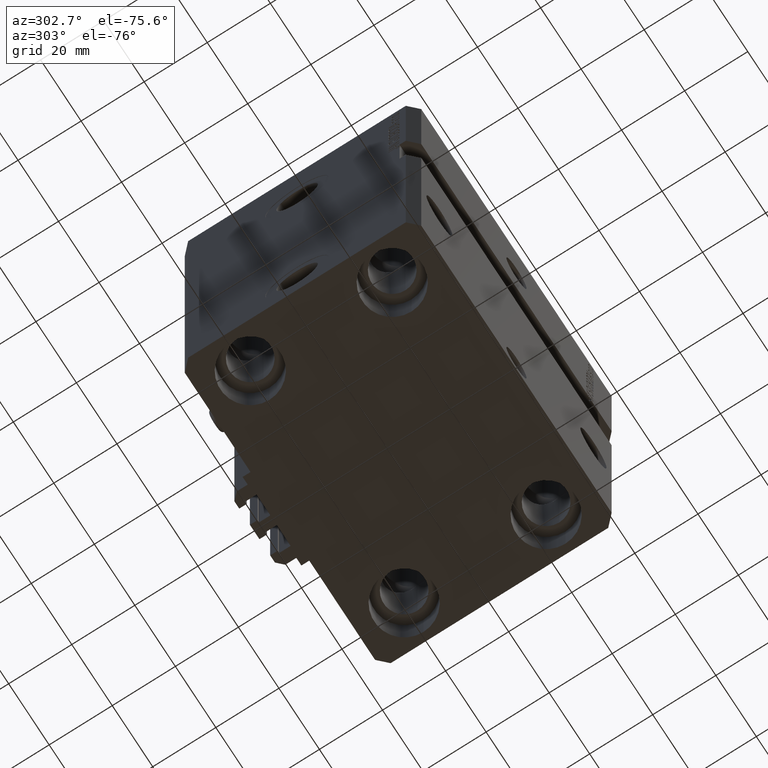
[diagram: clean part render]
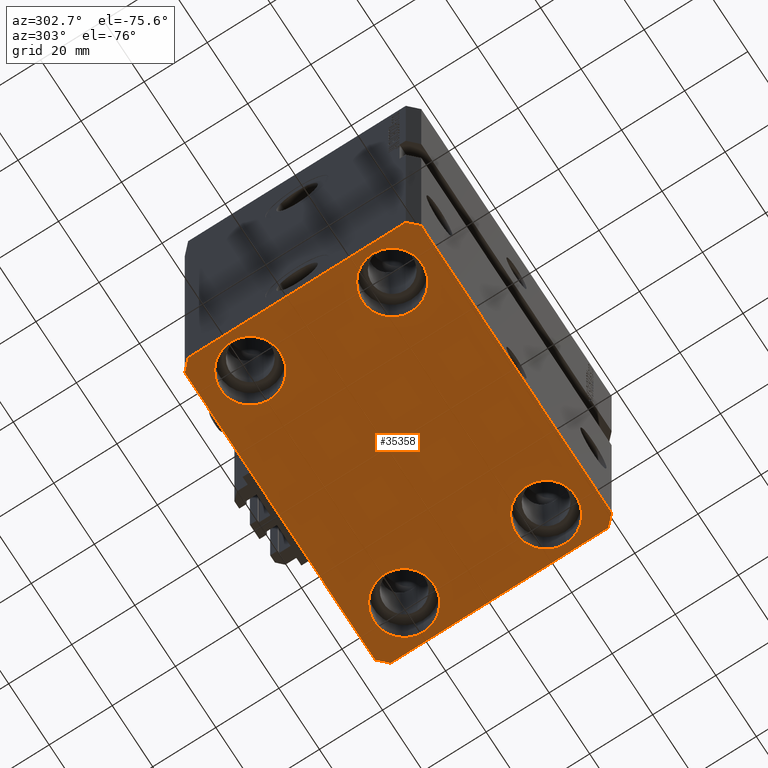
[diagram: same view with one face highlighted and labeled with its STEP entity id]
A machine part, auxiliary view. The second image highlights one B-rep face of the part: STEP entity #35358.
In plain terms, the highlighted planar face has unit normal (0, 0, 1).
Its self-contained STEP definition (entity closure, byte-faithful):
#408 = CARTESIAN_POINT ( 'NONE',  ( 47.00000000000000000, -37.50000000000000711, -125.0000000000000000 ) ) ;
#778 = EDGE_CURVE ( 'NONE', #5392, #48192, #28093, .T. ) ;
#797 = ORIENTED_EDGE ( 'NONE', *, *, #15388, .F. ) ;
#822 = CARTESIAN_POINT ( 'NONE',  ( 47.50000000000000711, 22.50000000000001421, -125.0000000000000000 ) ) ;
#846 = ORIENTED_EDGE ( 'NONE', *, *, #46431, .T. ) ;
#1302 = CARTESIAN_POINT ( 'NONE',  ( -38.00000000000000711, 22.50000000000000000, -125.0000000000000000 ) ) ;
#1478 = EDGE_CURVE ( 'NONE', #48192, #46323, #11118, .T. ) ;
#1617 = PLANE ( 'NONE',  #36142 ) ;
#1778 = DIRECTION ( 'NONE',  ( -0.000000000000000000, -0.000000000000000000, 1.000000000000000000 ) ) ;
#1850 = FACE_BOUND ( 'NONE', #33432, .T. ) ;
#1930 = VERTEX_POINT ( 'NONE', #4423 ) ;
#2247 = CARTESIAN_POINT ( 'NONE',  ( 38.00000000000000711, -22.50000000000000000, -125.0000000000000000 ) ) ;
#2320 = VECTOR ( 'NONE', #21015, 1000.000000000000000 ) ;
#2501 = CIRCLE ( 'NONE', #47617, 9.500000000000001776 ) ;
#2733 = DIRECTION ( 'NONE',  ( 1.000000000000000000, -1.476360405086644309E-16, 0.000000000000000000 ) ) ;
#3185 = CARTESIAN_POINT ( 'NONE',  ( -47.00000000000000000, -37.49999999999999289, -125.0000000000000000 ) ) ;
#4331 = CARTESIAN_POINT ( 'NONE',  ( 50.00000000000051870, 34.49999999999995026, -125.0000000000000000 ) ) ;
#4423 = CARTESIAN_POINT ( 'NONE',  ( 50.00000000000051870, 34.49999999999995026, -125.0000000000000000 ) ) ;
#4540 = ORIENTED_EDGE ( 'NONE', *, *, #1478, .F. ) ;
#4734 = CARTESIAN_POINT ( 'NONE',  ( -28.50000000000000355, 22.50000000000000000, -125.0000000000000000 ) ) ;
#4754 = DIRECTION ( 'NONE',  ( -0.000000000000000000, -0.000000000000000000, 1.000000000000000000 ) ) ;
#5272 = FACE_BOUND ( 'NONE', #28264, .T. ) ;
#5392 = VERTEX_POINT ( 'NONE', #31865 ) ;
#5471 = CARTESIAN_POINT ( 'NONE',  ( 38.00000000000000711, 22.50000000000001421, -125.0000000000000000 ) ) ;
#7202 = VERTEX_POINT ( 'NONE', #33750 ) ;
#7476 = ORIENTED_EDGE ( 'NONE', *, *, #26177, .T. ) ;
#7475 = DIRECTION ( 'NONE',  ( 2.011273595335428326E-16, -1.000000000000000000, 0.000000000000000000 ) ) ;
#7643 = AXIS2_PLACEMENT_3D ( 'NONE', #13553, #9188, #31132 ) ;
#7653 = CARTESIAN_POINT ( 'NONE',  ( 47.00000000000056843, 37.49999999999999289, -125.0000000000000000 ) ) ;
#7947 = LINE ( 'NONE', #408, #9078 ) ;
#8083 = EDGE_CURVE ( 'NONE', #1930, #14229, #23575, .T. ) ;
#8188 = ORIENTED_EDGE ( 'NONE', *, *, #34454, .T. ) ;
#8846 = VERTEX_POINT ( 'NONE', #31767 ) ;
#9078 = VECTOR ( 'NONE', #22575, 1000.000000000000000 ) ;
#9188 = DIRECTION ( 'NONE',  ( -0.000000000000000000, -0.000000000000000000, 1.000000000000000000 ) ) ;
#10290 = VECTOR ( 'NONE', #29129, 1000.000000000000114 ) ;
#10386 = VERTEX_POINT ( 'NONE', #27054 ) ;
#10500 = VECTOR ( 'NONE', #15538, 1000.000000000000114 ) ;
#10894 = DIRECTION ( 'NONE',  ( 7.441712302741091634E-15, 1.000000000000000000, 0.000000000000000000 ) ) ;
#11036 = EDGE_CURVE ( 'NONE', #7202, #24798, #39330, .T. ) ;
#11118 = LINE ( 'NONE', #33545, #36569 ) ;
#11430 = ORIENTED_EDGE ( 'NONE', *, *, #8083, .F. ) ;
#12045 = ORIENTED_EDGE ( 'NONE', *, *, #22382, .F. ) ;
#12107 = VERTEX_POINT ( 'NONE', #28439 ) ;
#12309 = VECTOR ( 'NONE', #10894, 1000.000000000000000 ) ;
#12313 = CIRCLE ( 'NONE', #7643, 9.500000000000001776 ) ;
#13356 = VERTEX_POINT ( 'NONE', #29351 ) ;
#13456 = CARTESIAN_POINT ( 'NONE',  ( -47.00000000000001421, 37.50000000000000000, -125.0000000000000000 ) ) ;
#13553 = CARTESIAN_POINT ( 'NONE',  ( 38.00000000000000711, 22.50000000000001421, -125.0000000000000000 ) ) ;
#13788 = AXIS2_PLACEMENT_3D ( 'NONE', #39267, #24390, #24878 ) ;
#14229 = VERTEX_POINT ( 'NONE', #7653 ) ;
#14247 = CARTESIAN_POINT ( 'NONE',  ( -50.00000000000000000, -34.50000000000000000, -125.0000000000000000 ) ) ;
#14410 = CARTESIAN_POINT ( 'NONE',  ( -38.00000000000000711, -22.50000000000000000, -125.0000000000000000 ) ) ;
#14550 = LINE ( 'NONE', #26008, #12309 ) ;
#15388 = EDGE_CURVE ( 'NONE', #10386, #13356, #7947, .T. ) ;
#15538 = DIRECTION ( 'NONE',  ( -0.7071067811865361374, 0.7071067811865588970, 0.000000000000000000 ) ) ;
#15947 = DIRECTION ( 'NONE',  ( -0.000000000000000000, -0.000000000000000000, 1.000000000000000000 ) ) ;
#17092 = DIRECTION ( 'NONE',  ( -0.000000000000000000, -0.000000000000000000, 1.000000000000000000 ) ) ;
#17583 = LINE ( 'NONE', #36122, #25646 ) ;
#17696 = EDGE_CURVE ( 'NONE', #8846, #33534, #42632, .T. ) ;
#17825 = DIRECTION ( 'NONE',  ( -0.000000000000000000, -0.000000000000000000, 1.000000000000000000 ) ) ;
#17881 = DIRECTION ( 'NONE',  ( -1.000000000000000000, 7.381802025433175941E-17, 0.000000000000000000 ) ) ;
#18297 = DIRECTION ( 'NONE',  ( 1.000000000000000000, 0.000000000000000000, 0.000000000000000000 ) ) ;
#19262 = AXIS2_PLACEMENT_3D ( 'NONE', #5471, #4754, #33998 ) ;
#19469 = EDGE_CURVE ( 'NONE', #33534, #8846, #12313, .T. ) ;
#20033 = DIRECTION ( 'NONE',  ( 1.000000000000000000, 0.000000000000000000, 0.000000000000000000 ) ) ;
#20424 = EDGE_LOOP ( 'NONE', ( #43704, #11430, #12045, #797, #45141, #32343, #4540, #29769 ) ) ;
#20494 = CIRCLE ( 'NONE', #44642, 9.500000000000001776 ) ;
#20771 = CARTESIAN_POINT ( 'NONE',  ( -28.50000000000000355, -22.50000000000000000, -125.0000000000000000 ) ) ;
#21015 = DIRECTION ( 'NONE',  ( -0.7071067811865483499, -0.7071067811865466846, 0.000000000000000000 ) ) ;
#21536 = CARTESIAN_POINT ( 'NONE',  ( 47.00000000000056843, 37.49999999999999289, -125.0000000000000000 ) ) ;
#21895 = VERTEX_POINT ( 'NONE', #4734 ) ;
#22382 = EDGE_CURVE ( 'NONE', #13356, #1930, #14550, .T. ) ;
#22575 = DIRECTION ( 'NONE',  ( 0.7071067811865483499, 0.7071067811865466846, 0.000000000000000000 ) ) ;
#22722 = EDGE_CURVE ( 'NONE', #46559, #10386, #17583, .T. ) ;
#23408 = CARTESIAN_POINT ( 'NONE',  ( -38.00000000000000711, 22.50000000000000000, -125.0000000000000000 ) ) ;
#23544 = CARTESIAN_POINT ( 'NONE',  ( 0.000000000000000000, 0.000000000000000000, -125.0000000000000000 ) ) ;
#23575 = LINE ( 'NONE', #4331, #10500 ) ;
#23668 = EDGE_LOOP ( 'NONE', ( #26444, #26359 ) ) ;
#23671 = CARTESIAN_POINT ( 'NONE',  ( -50.00000000000000000, -34.50000000000000000, -125.0000000000000000 ) ) ;
#23742 = ORIENTED_EDGE ( 'NONE', *, *, #26016, .T. ) ;
#23792 = FACE_OUTER_BOUND ( 'NONE', #20424, .T. ) ;
#24390 = DIRECTION ( 'NONE',  ( -0.000000000000000000, -0.000000000000000000, 1.000000000000000000 ) ) ;
#24798 = VERTEX_POINT ( 'NONE', #42553 ) ;
#24878 = DIRECTION ( 'NONE',  ( 1.000000000000000000, 0.000000000000000000, 0.000000000000000000 ) ) ;
#24910 = AXIS2_PLACEMENT_3D ( 'NONE', #14410, #17825, #18297 ) ;
#25646 = VECTOR ( 'NONE', #2733, 1000.000000000000000 ) ;
#26008 = CARTESIAN_POINT ( 'NONE',  ( 50.00000000000000000, -34.50000000000000711, -125.0000000000000000 ) ) ;
#26016 = EDGE_CURVE ( 'NONE', #27271, #47457, #41224, .T. ) ;
#26177 = EDGE_CURVE ( 'NONE', #21895, #12107, #47451, .T. ) ;
#26237 = EDGE_LOOP ( 'NONE', ( #846, #23742 ) ) ;
#26359 = ORIENTED_EDGE ( 'NONE', *, *, #19469, .T. ) ;
#26444 = ORIENTED_EDGE ( 'NONE', *, *, #17696, .T. ) ;
#27054 = CARTESIAN_POINT ( 'NONE',  ( 47.00000000000000000, -37.50000000000000711, -125.0000000000000000 ) ) ;
#27172 = DIRECTION ( 'NONE',  ( 1.000000000000000000, 0.000000000000000000, 0.000000000000000000 ) ) ;
#27271 = VERTEX_POINT ( 'NONE', #20771 ) ;
#27448 = DIRECTION ( 'NONE',  ( 1.000000000000000000, 0.000000000000000000, -0.000000000000000000 ) ) ;
#28093 = LINE ( 'NONE', #13456, #2320 ) ;
#28264 = EDGE_LOOP ( 'NONE', ( #8188, #7476 ) ) ;
#28439 = CARTESIAN_POINT ( 'NONE',  ( -47.50000000000000711, 22.50000000000000000, -125.0000000000000000 ) ) ;
#28705 = CARTESIAN_POINT ( 'NONE',  ( -50.00000000000001421, 34.50000000000000000, -125.0000000000000000 ) ) ;
#28781 = EDGE_CURVE ( 'NONE', #46323, #46559, #47176, .T. ) ;
#29129 = DIRECTION ( 'NONE',  ( 0.7071067811865491270, -0.7071067811865459074, 0.000000000000000000 ) ) ;
#29185 = ORIENTED_EDGE ( 'NONE', *, *, #11036, .T. ) ;
#29351 = CARTESIAN_POINT ( 'NONE',  ( 50.00000000000000000, -34.50000000000000711, -125.0000000000000000 ) ) ;
#29769 = ORIENTED_EDGE ( 'NONE', *, *, #778, .F. ) ;
#29954 = EDGE_CURVE ( 'NONE', #24798, #7202, #2501, .T. ) ;
#30136 = CIRCLE ( 'NONE', #13788, 9.500000000000001776 ) ;
#31129 = AXIS2_PLACEMENT_3D ( 'NONE', #23408, #35104, #38287 ) ;
#31132 = DIRECTION ( 'NONE',  ( 1.000000000000000000, 0.000000000000000000, 0.000000000000000000 ) ) ;
#31523 = AXIS2_PLACEMENT_3D ( 'NONE', #2247, #17092, #20033 ) ;
#31767 = CARTESIAN_POINT ( 'NONE',  ( 28.50000000000000355, 22.50000000000001421, -125.0000000000000000 ) ) ;
#31865 = CARTESIAN_POINT ( 'NONE',  ( -47.00000000000001421, 37.50000000000000000, -125.0000000000000000 ) ) ;
#32343 = ORIENTED_EDGE ( 'NONE', *, *, #28781, .F. ) ;
#32868 = ORIENTED_EDGE ( 'NONE', *, *, #29954, .T. ) ;
#33432 = EDGE_LOOP ( 'NONE', ( #32868, #29185 ) ) ;
#33534 = VERTEX_POINT ( 'NONE', #822 ) ;
#33545 = CARTESIAN_POINT ( 'NONE',  ( -50.00000000000001421, 34.50000000000000000, -125.0000000000000000 ) ) ;
#33750 = CARTESIAN_POINT ( 'NONE',  ( 47.50000000000000711, -22.50000000000000000, -125.0000000000000000 ) ) ;
#33998 = DIRECTION ( 'NONE',  ( 1.000000000000000000, 0.000000000000000000, 0.000000000000000000 ) ) ;
#34454 = EDGE_CURVE ( 'NONE', #12107, #21895, #20494, .T. ) ;
#34516 = FACE_BOUND ( 'NONE', #26237, .T. ) ;
#35104 = DIRECTION ( 'NONE',  ( -0.000000000000000000, -0.000000000000000000, 1.000000000000000000 ) ) ;
#35358 = ADVANCED_FACE ( 'NONE', ( #34516, #1850, #39144, #5272, #23792 ), #1617, .F. ) ;
#36122 = CARTESIAN_POINT ( 'NONE',  ( -47.00000000000000000, -37.49999999999999289, -125.0000000000000000 ) ) ;
#36142 = AXIS2_PLACEMENT_3D ( 'NONE', #23544, #42561, #27448 ) ;
#36569 = VECTOR ( 'NONE', #7475, 1000.000000000000000 ) ;
#37872 = EDGE_CURVE ( 'NONE', #14229, #5392, #40082, .T. ) ;
#38287 = DIRECTION ( 'NONE',  ( 1.000000000000000000, 0.000000000000000000, 0.000000000000000000 ) ) ;
#39144 = FACE_BOUND ( 'NONE', #23668, .T. ) ;
#39267 = CARTESIAN_POINT ( 'NONE',  ( -38.00000000000000711, -22.50000000000000000, -125.0000000000000000 ) ) ;
#39330 = CIRCLE ( 'NONE', #31523, 9.500000000000001776 ) ;
#39343 = CARTESIAN_POINT ( 'NONE',  ( 38.00000000000000711, -22.50000000000000000, -125.0000000000000000 ) ) ;
#39351 = VECTOR ( 'NONE', #17881, 1000.000000000000000 ) ;
#40082 = LINE ( 'NONE', #21536, #39351 ) ;
#41224 = CIRCLE ( 'NONE', #24910, 9.500000000000001776 ) ;
#42489 = DIRECTION ( 'NONE',  ( 1.000000000000000000, 0.000000000000000000, 0.000000000000000000 ) ) ;
#42553 = CARTESIAN_POINT ( 'NONE',  ( 28.50000000000000355, -22.50000000000000000, -125.0000000000000000 ) ) ;
#42561 = DIRECTION ( 'NONE',  ( 0.000000000000000000, 0.000000000000000000, 1.000000000000000000 ) ) ;
#42632 = CIRCLE ( 'NONE', #19262, 9.500000000000001776 ) ;
#43704 = ORIENTED_EDGE ( 'NONE', *, *, #37872, .F. ) ;
#44642 = AXIS2_PLACEMENT_3D ( 'NONE', #1302, #1778, #42489 ) ;
#45090 = CARTESIAN_POINT ( 'NONE',  ( -47.50000000000000711, -22.50000000000000000, -125.0000000000000000 ) ) ;
#45141 = ORIENTED_EDGE ( 'NONE', *, *, #22722, .F. ) ;
#46323 = VERTEX_POINT ( 'NONE', #23671 ) ;
#46431 = EDGE_CURVE ( 'NONE', #47457, #27271, #30136, .T. ) ;
#46559 = VERTEX_POINT ( 'NONE', #3185 ) ;
#47176 = LINE ( 'NONE', #14247, #10290 ) ;
#47451 = CIRCLE ( 'NONE', #31129, 9.500000000000001776 ) ;
#47457 = VERTEX_POINT ( 'NONE', #45090 ) ;
#47617 = AXIS2_PLACEMENT_3D ( 'NONE', #39343, #15947, #27172 ) ;
#48192 = VERTEX_POINT ( 'NONE', #28705 ) ;